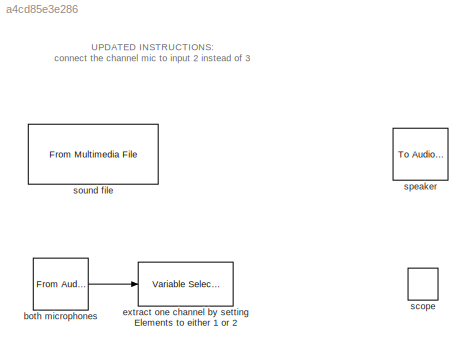
MODEL slx_a4cd85e3e286
KIND model
BLOCK [Reference] both microphones  REF=dspsrcs4/From Audio
Device
  Ports = [0, 1]
  SourceBlock = dspsrcs4/From Audio\nDevice
  SourceType = From Audio Device
  autoBufferSize = on
  bufferSize = 4096
  defaultInputChannelMapping = on
  deviceDatatype = Determine from output data type
  deviceName = FCA1616 Mic 1/2 (3- Behringer FCA1616 WDM)
  frameSize = 1024
  inputChannelMapping = 1:2
  numChannels = 2
  outputDatatype = double
  queueDuration = 0.1
  sampleRate = 1/sampletime
BLOCK [Reference] extract one channel by setting Elements to either 1 or 2  REF=dspindex/Variable
Selector
  Elements = 2
  FillMode = on
  FillValues = 0
  IdxMode = Fixed
  NumInputs = 1
  Ports = [1, 1]
  ShowPortLabels = off
  SourceBlock = dspindex/Variable\nSelector
  SourceType = Variable Selector
  ZerOneIdxMode = One-based
  errmode = Clip Index
  rowsOrCols = Columns
BLOCK [TimeScope] scope 
  DefaultConfigurationName = spbscopes.TimeScopeBlockCfg
  NumInputPorts = 1
  Ports = [1]
  UserDataPersistent = on
BLOCK [Reference] sound file  REF=dspvision/From Multimedia File
  Ports = [0, 1]
  SourceBlock = dspvision/From Multimedia File
  SourceType = From Multimedia File
  audioDataType = double
  audioFrameSize = 1024
  colorVideoFormat = Separate color signals
  computeAudioFrameSize = off
  dataOrg = Column-major
  fourcc = RGB
  inheritSampleTime = on
  inputFilename = guns.wav
  isIntensityVideo = off
  loop = on
  noAudioOutput = off
  numPlays = inf
  outSamplingMode = Frame based
  outputEOF = off
  outputStreams = Audio only
  userDefinedSampleTime = 1/30
  videoDataType = single
BLOCK [Reference] speaker   REF=dspsnks4/To Audio
Device
  Ports = [1]
  SourceBlock = dspsnks4/To Audio\nDevice
  SourceType = To Audio Device
  autoBufferSize = on
  bufferSize = 4096
  defaultOutputChannelMapping = on
  deviceDatatype = Determine from input data type
  deviceName = FCA1616 Line 3/4 (3- Behringer FCA1616 WDM)
  inheritSampleRate = off
  outputChannelMapping = 1:2
  queueDuration = 0.1
  sampleRate = 1/sampletime
ANNOTATION (root): UPDATED INSTRUCTIONS: connect the channel mic to input 2 instead of 3
LINE both microphones:1 -> extract one channel by setting Elements to either 1 or 2:1
